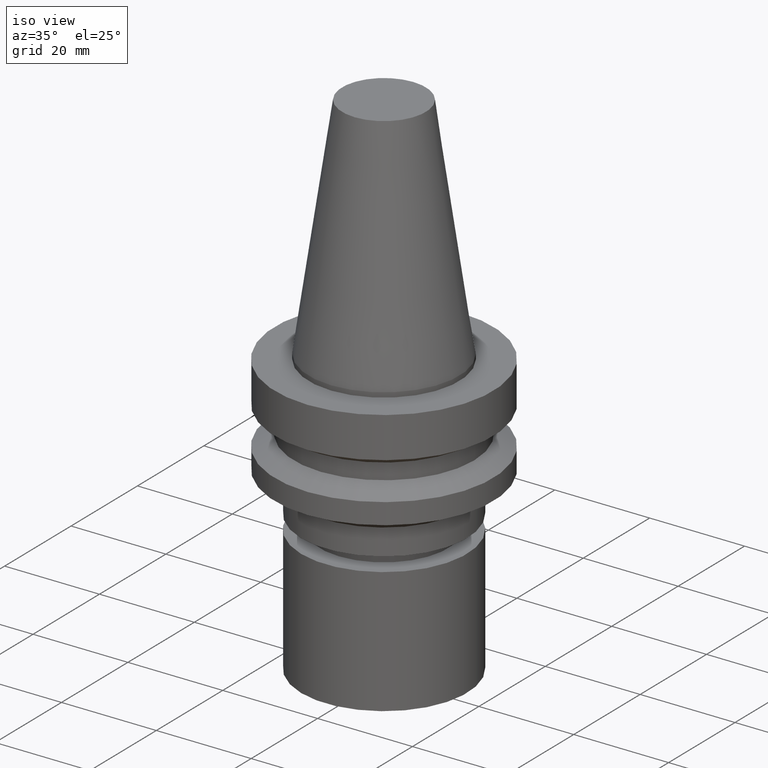
[diagram: clean part render]
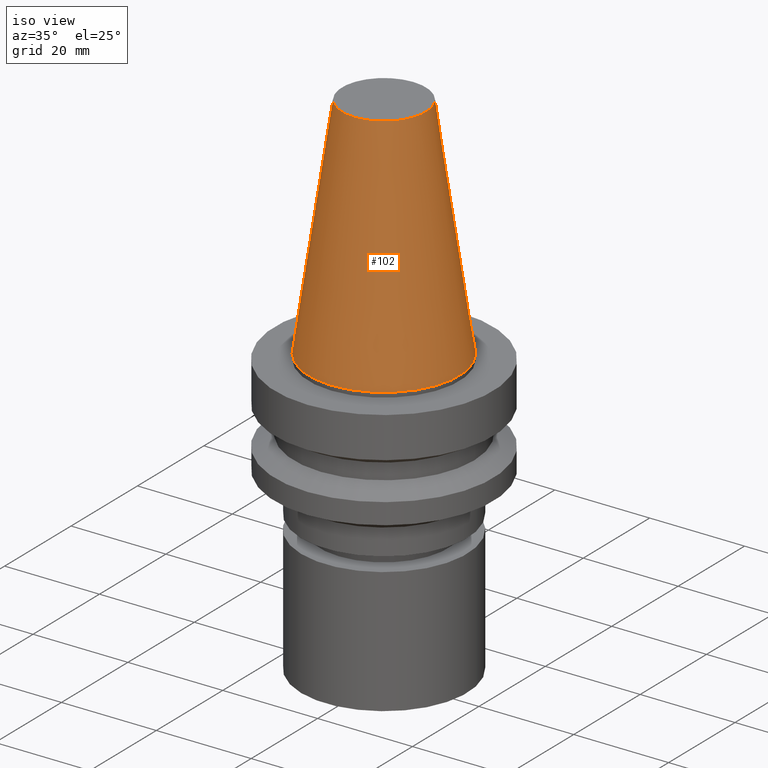
[diagram: tour spotlight — one face highlighted and labeled with its STEP entity id]
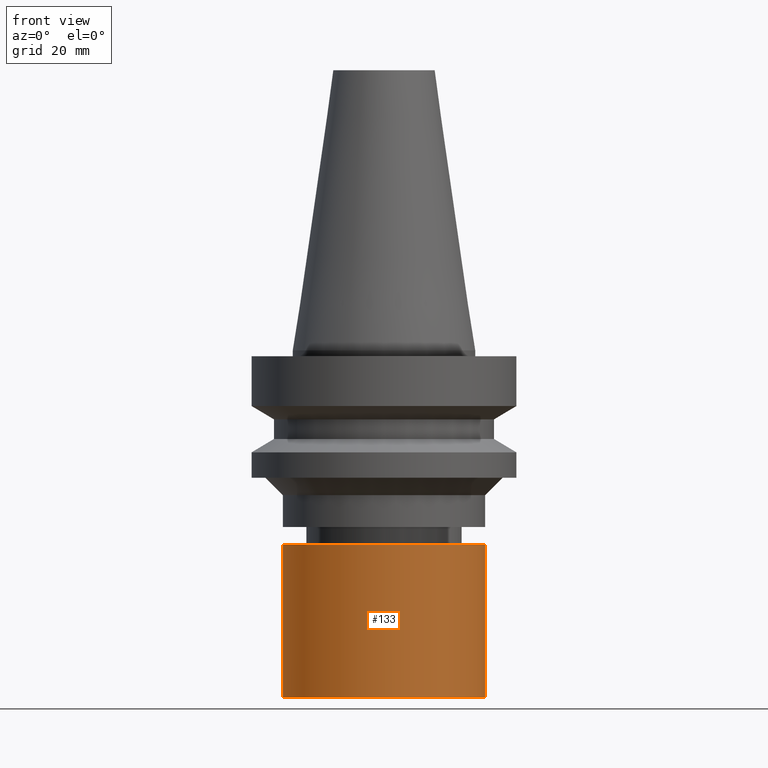
[diagram: tour spotlight — one face highlighted and labeled with its STEP entity id]
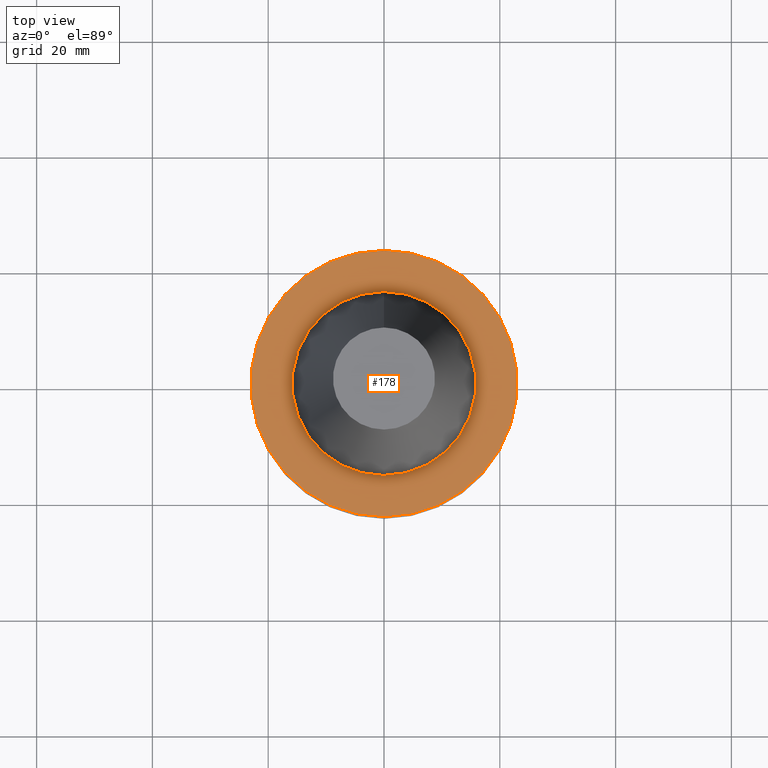
[diagram: tour spotlight — one face highlighted and labeled with its STEP entity id]
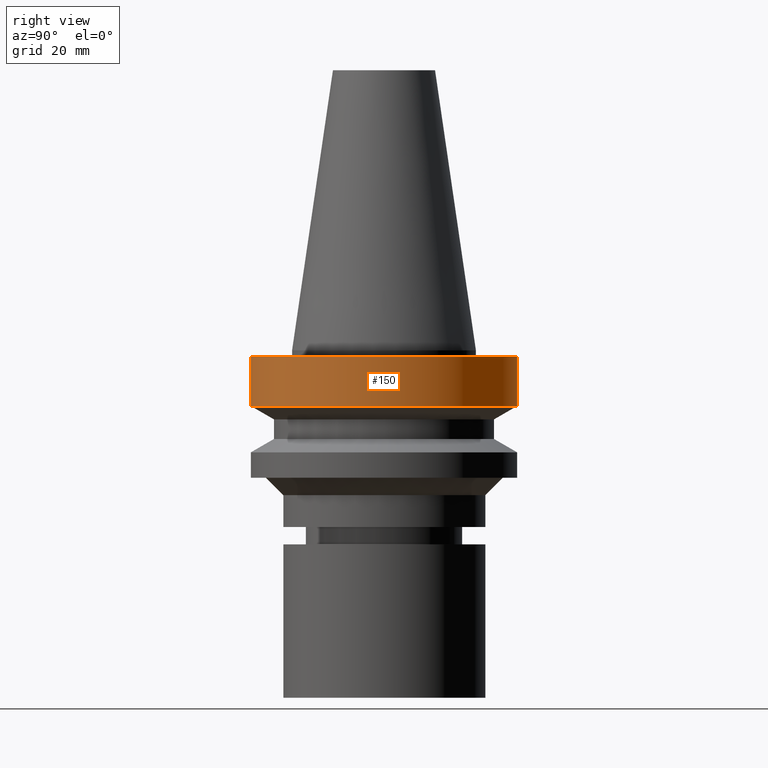
[diagram: tour spotlight — one face highlighted and labeled with its STEP entity id]
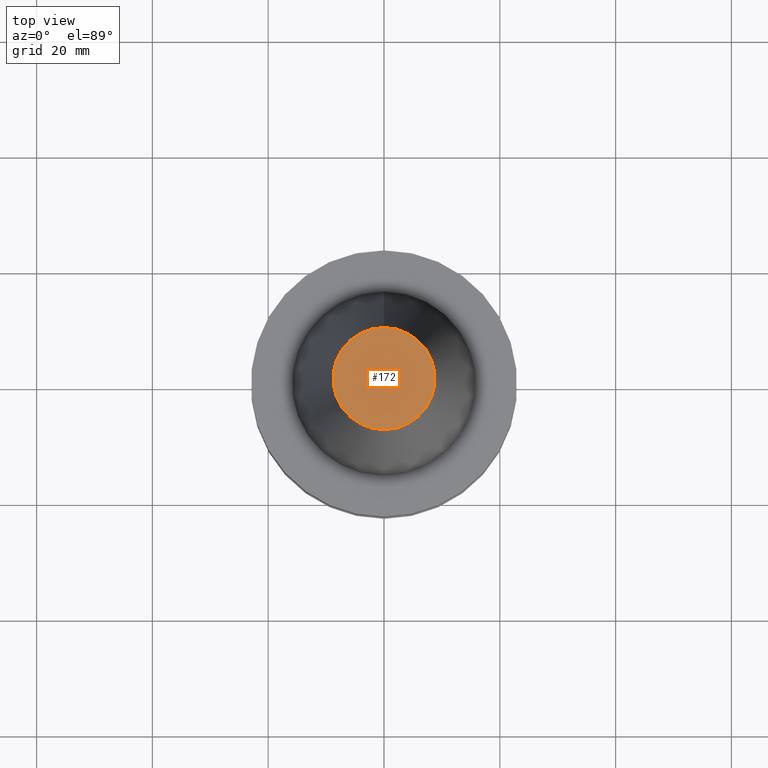
[diagram: tour spotlight — one face highlighted and labeled with its STEP entity id]
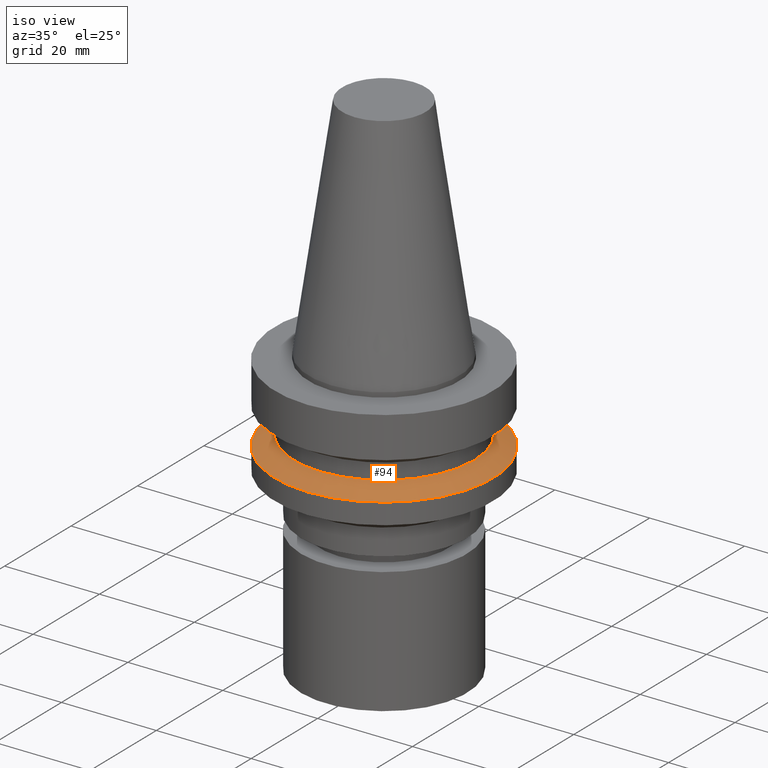
[diagram: tour spotlight — one face highlighted and labeled with its STEP entity id]
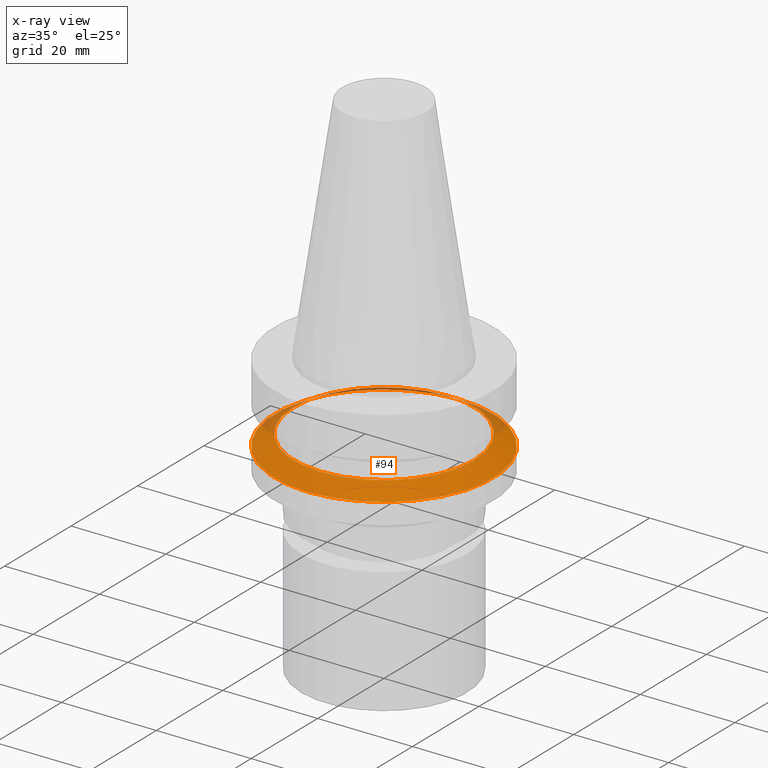
[diagram: x-ray of the same camera — body ghosted, this tour face saturated]
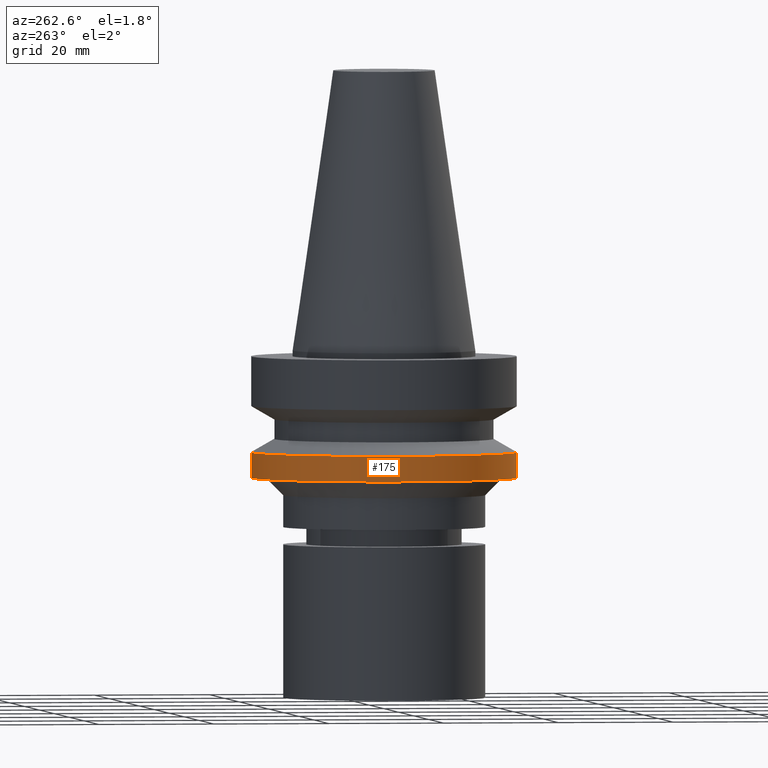
[diagram: tour spotlight — one face highlighted and labeled with its STEP entity id]
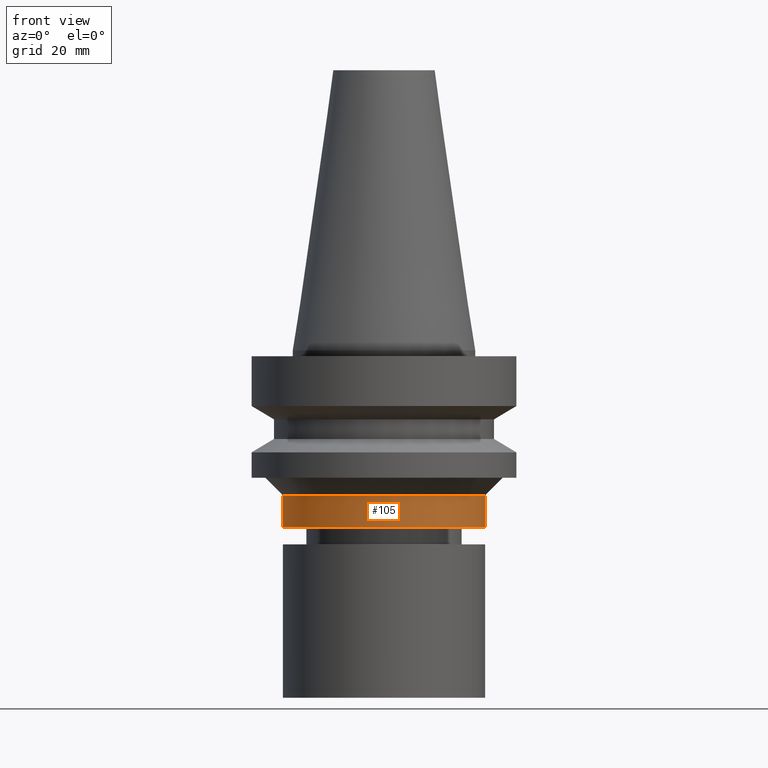
[diagram: tour spotlight — one face highlighted and labeled with its STEP entity id]
A machine part: a face-by-face anatomy tour. The part has 21 B-rep faces; the first image is the clean iso view, then the 8 largest visible faces are spotlighted one at a time (largest first), each with its STEP entity span.

Face 1 — iso view, entity #102. In plain terms, the highlighted conical surface has half-angle 8.297 deg.
Definition (entity closure, byte-faithful):
#102=ADVANCED_FACE('Unnamed[1]',(#241,#242),#243,.T.);
#116=EDGE_CURVE('Unnamed[1]',#264,#264,#265,.T.);
#180=EDGE_CURVE('Unnamed[1]',#362,#362,#363,.T.);
#241=FACE_BOUND('',#426,.T.);
#242=FACE_BOUND('',#427,.T.);
#243=CONICAL_SURFACE('',#428,12.3457500009933,0.144815870013618);
#264=VERTEX_POINT('',#455);
#265=CIRCLE('',#456,8.81650000198669);
#362=VERTEX_POINT('',#577);
#363=CIRCLE('',#578,15.875);
#426=EDGE_LOOP('',(#623));
#427=EDGE_LOOP('',(#624));
#428=AXIS2_PLACEMENT_3D('',#625,#626,#627);
#455=CARTESIAN_POINT('',(-2.96364525393659E-015,8.81650000198669,48.4));
#456=AXIS2_PLACEMENT_3D('',#649,#650,#651);
#577=CARTESIAN_POINT('',(-1.95674482349743E-031,15.875,1.94412679364642E-015));
#578=AXIS2_PLACEMENT_3D('',#758,#759,#760);
#623=ORIENTED_EDGE('',*,*,#180,.F.);
#624=ORIENTED_EDGE('',*,*,#116,.T.);
#625=CARTESIAN_POINT('',(-1.4818226269683E-015,-2.96364525393659E-015,24.2));
#626=DIRECTION('',(6.12323399573677E-017,1.22464679914735E-016,-1.0));
#627=DIRECTION('',(-1.23259516440783E-032,1.0,1.22464679914735E-016));
#649=CARTESIAN_POINT('',(-2.96364525393659E-015,-5.92729050787319E-015,48.4));
#650=DIRECTION('',(6.12323399573677E-017,1.22464679914735E-016,-1.0));
#651=DIRECTION('',(-1.23259516440783E-032,1.0,1.22464679914735E-016));
#758=CARTESIAN_POINT('',(0.0,0.0,0.0));
#759=DIRECTION('',(6.12323399573677E-017,1.22464679914735E-016,-1.0));
#760=DIRECTION('',(-1.23259516440783E-032,1.0,1.22464679914735E-016));

Face 2 — front view, entity #133. In plain terms, the highlighted cylindrical surface (bore or boss wall) has radius 17.5 mm, axis along (0, 0, -1).
Definition (entity closure, byte-faithful):
#112=EDGE_CURVE('Unnamed[1]',#258,#258,#259,.T.);
#114=EDGE_CURVE('Unnamed[1]',#261,#261,#262,.T.);
#133=ADVANCED_FACE('Unnamed[1]',(#290,#291),#292,.T.);
#258=VERTEX_POINT('',#447);
#259=CIRCLE('',#448,17.5);
#261=VERTEX_POINT('',#451);
#262=CIRCLE('',#452,17.5);
#290=FACE_BOUND('',#488,.T.);
#291=FACE_BOUND('',#489,.T.);
#292=CYLINDRICAL_SURFACE('',#490,17.5);
#447=CARTESIAN_POINT('',(3.67394039744206E-015,17.5,-60.0));
#448=AXIS2_PLACEMENT_3D('',#643,#644,#645);
#451=CARTESIAN_POINT('',(2.05128432290318E-015,17.5,-33.5000152587891));
#452=AXIS2_PLACEMENT_3D('',#646,#647,#648);
#488=EDGE_LOOP('',(#677));
#489=EDGE_LOOP('',(#678));
#490=AXIS2_PLACEMENT_3D('',#679,#680,#681);
#643=CARTESIAN_POINT('',(3.67394039744206E-015,7.34788079488411E-015,-60.0));
#644=DIRECTION('',(6.12323399573677E-017,1.22464679914735E-016,-1.0));
#645=DIRECTION('',(-1.23259516440783E-032,1.0,1.22464679914735E-016));
#646=CARTESIAN_POINT('',(2.05128432290318E-015,4.10256864580635E-015,-33.5000152587891));
#647=DIRECTION('',(6.12323399573677E-017,1.22464679914735E-016,-1.0));
#648=DIRECTION('',(-1.23259516440783E-032,1.0,1.22464679914735E-016));
#677=ORIENTED_EDGE('',*,*,#112,.F.);
#678=ORIENTED_EDGE('',*,*,#114,.T.);
#679=CARTESIAN_POINT('',(2.86261236017262E-015,5.72522472034523E-015,-46.7500076293945));
#680=DIRECTION('',(6.12323399573677E-017,1.22464679914735E-016,-1.0));
#681=DIRECTION('',(-1.23259516440783E-032,1.0,1.22464679914735E-016));

Face 3 — top view, entity #178. In plain terms, the highlighted planar face has unit normal (-0, -0, 1).
Definition (entity closure, byte-faithful):
#125=EDGE_CURVE('Unnamed[1]',#278,#278,#279,.T.);
#152=EDGE_CURVE('Unnamed[1]',#319,#319,#320,.T.);
#178=ADVANCED_FACE('Unnamed[1]',(#358,#359),#360,.T.);
#278=VERTEX_POINT('',#473);
#279=CIRCLE('',#474,23.0);
#319=VERTEX_POINT('',#523);
#320=CIRCLE('',#524,15.875);
#358=FACE_OUTER_BOUND('',#572,.T.);
#359=FACE_BOUND('',#573,.T.);
#360=PLANE('',#574);
#473=CARTESIAN_POINT('',(6.12323399573674E-017,23.0,-0.999999999999997));
#474=AXIS2_PLACEMENT_3D('',#664,#665,#666);
#523=CARTESIAN_POINT('',(6.12323399573675E-017,15.875,-0.999999999999998));
#524=AXIS2_PLACEMENT_3D('',#709,#710,#711);
#572=EDGE_LOOP('',(#753));
#573=EDGE_LOOP('',(#754));
#574=AXIS2_PLACEMENT_3D('',#755,#756,#757);
#664=CARTESIAN_POINT('',(6.12323399573677E-017,1.22464679914735E-016,-1.0));
#665=DIRECTION('',(6.12323399573677E-017,1.22464679914735E-016,-1.0));
#666=DIRECTION('',(-1.23259516440783E-032,1.0,1.22464679914735E-016));
#709=CARTESIAN_POINT('',(6.12323399573677E-017,1.22464679914735E-016,-1.0));
#710=DIRECTION('',(6.12323399573677E-017,1.22464679914735E-016,-1.0));
#711=DIRECTION('',(-1.23259516440783E-032,1.0,1.22464679914735E-016));
#753=ORIENTED_EDGE('',*,*,#125,.F.);
#754=ORIENTED_EDGE('',*,*,#152,.T.);
#755=CARTESIAN_POINT('',(6.12323399573674E-017,19.4375,-0.999999999999998));
#756=DIRECTION('',(-6.12323399573677E-017,-1.22464679914735E-016,1.0));
#757=DIRECTION('',(1.23259516440783E-032,-1.0,-1.22464679914735E-016));

Face 4 — right view, entity #150. In plain terms, the highlighted cylindrical surface (bore or boss wall) has radius 23 mm, axis along (0, 0, -1).
Definition (entity closure, byte-faithful):
#125=EDGE_CURVE('Unnamed[1]',#278,#278,#279,.T.);
#150=ADVANCED_FACE('Unnamed[1]',(#315,#316),#317,.T.);
#158=EDGE_CURVE('Unnamed[1]',#328,#328,#329,.T.);
#278=VERTEX_POINT('',#473);
#279=CIRCLE('',#474,23.0);
#315=FACE_BOUND('',#518,.T.);
#316=FACE_BOUND('',#519,.T.);
#317=CYLINDRICAL_SURFACE('',#520,23.0);
#328=VERTEX_POINT('',#535);
#329=CIRCLE('',#536,23.0);
#473=CARTESIAN_POINT('',(6.12323399573674E-017,23.0,-0.999999999999997));
#474=AXIS2_PLACEMENT_3D('',#664,#665,#666);
#518=EDGE_LOOP('',(#704));
#519=EDGE_LOOP('',(#705));
#520=AXIS2_PLACEMENT_3D('',#706,#707,#708);
#535=CARTESIAN_POINT('',(5.87830463590729E-016,23.0,-9.59999999999999));
#536=AXIS2_PLACEMENT_3D('',#718,#719,#720);
#664=CARTESIAN_POINT('',(6.12323399573677E-017,1.22464679914735E-016,-1.0));
#665=DIRECTION('',(6.12323399573677E-017,1.22464679914735E-016,-1.0));
#666=DIRECTION('',(-1.23259516440783E-032,1.0,1.22464679914735E-016));
#704=ORIENTED_EDGE('',*,*,#158,.F.);
#705=ORIENTED_EDGE('',*,*,#125,.T.);
#706=CARTESIAN_POINT('',(3.24531401774048E-016,6.49062803548097E-016,-5.3));
#707=DIRECTION('',(6.12323399573677E-017,1.22464679914735E-016,-1.0));
#708=DIRECTION('',(-1.23259516440783E-032,1.0,1.22464679914735E-016));
#718=CARTESIAN_POINT('',(5.87830463590729E-016,1.17566092718146E-015,-9.59999999999999));
#719=DIRECTION('',(6.12323399573677E-017,1.22464679914735E-016,-1.0));
#720=DIRECTION('',(-1.23259516440783E-032,1.0,1.22464679914735E-016));

Face 5 — top view, entity #172. In plain terms, the highlighted planar face has unit normal (-0, -0, 1).
Definition (entity closure, byte-faithful):
#116=EDGE_CURVE('Unnamed[1]',#264,#264,#265,.T.);
#172=ADVANCED_FACE('Unnamed[1]',(#349),#350,.T.);
#264=VERTEX_POINT('',#455);
#265=CIRCLE('',#456,8.81650000198669);
#349=FACE_OUTER_BOUND('',#561,.T.);
#350=PLANE('',#562);
#455=CARTESIAN_POINT('',(-2.96364525393659E-015,8.81650000198669,48.4));
#456=AXIS2_PLACEMENT_3D('',#649,#650,#651);
#561=EDGE_LOOP('',(#742));
#562=AXIS2_PLACEMENT_3D('',#743,#744,#745);
#649=CARTESIAN_POINT('',(-2.96364525393659E-015,-5.92729050787319E-015,48.4));
#650=DIRECTION('',(6.12323399573677E-017,1.22464679914735E-016,-1.0));
#651=DIRECTION('',(-1.23259516440783E-032,1.0,1.22464679914735E-016));
#742=ORIENTED_EDGE('',*,*,#116,.F.);
#743=CARTESIAN_POINT('',(-2.96364525393659E-015,4.40825000099334,48.4));
#744=DIRECTION('',(-6.12323399573677E-017,-1.22464679914735E-016,1.0));
#745=DIRECTION('',(1.23259516440783E-032,-1.0,-1.22464679914735E-016));

Face 6 — iso view, entity #94. An x-ray twin of the same camera follows (body ghosted, this face saturated) — the face is partly hidden behind the body. In plain terms, the highlighted conical surface has half-angle 60 deg.
Definition (entity closure, byte-faithful):
#80=EDGE_CURVE('Unnamed[1]',#209,#209,#210,.T.);
#94=ADVANCED_FACE('Unnamed[1]',(#229,#230),#231,.T.);
#130=EDGE_CURVE('Unnamed[1]',#286,#286,#287,.T.);
#209=VERTEX_POINT('',#387);
#210=CIRCLE('',#388,23.0);
#229=FACE_BOUND('',#411,.T.);
#230=FACE_BOUND('',#412,.T.);
#231=CONICAL_SURFACE('',#413,21.0,1.04719755058882);
#286=VERTEX_POINT('',#483);
#287=CIRCLE('',#484,19.0);
#387=CARTESIAN_POINT('',(1.07768918324967E-015,23.0,-17.6));
#388=AXIS2_PLACEMENT_3D('',#589,#590,#591);
#411=EDGE_LOOP('',(#609));
#412=EDGE_LOOP('',(#610));
#413=AXIS2_PLACEMENT_3D('',#611,#612,#613);
#483=CARTESIAN_POINT('',(9.36279151221199E-016,19.0,-15.29059892));
#484=AXIS2_PLACEMENT_3D('',#673,#674,#675);
#589=CARTESIAN_POINT('',(1.07768918324967E-015,2.15537836649934E-015,-17.6));
#590=DIRECTION('',(6.12323399573677E-017,1.22464679914735E-016,-1.0));
#591=DIRECTION('',(-1.23259516440783E-032,1.0,1.22464679914735E-016));
#609=ORIENTED_EDGE('',*,*,#80,.F.);
#610=ORIENTED_EDGE('',*,*,#130,.T.);
#611=CARTESIAN_POINT('',(1.00698416723543E-015,2.01396833447087E-015,-16.44529946));
#612=DIRECTION('',(6.12323399573677E-017,1.22464679914735E-016,-1.0));
#613=DIRECTION('',(-1.23259516440783E-032,1.0,1.22464679914735E-016));
#673=CARTESIAN_POINT('',(9.36279151221199E-016,1.8725583024424E-015,-15.29059892));
#674=DIRECTION('',(6.12323399573677E-017,1.22464679914735E-016,-1.0));
#675=DIRECTION('',(-1.23259516440783E-032,1.0,1.22464679914735E-016));

Face 7 — auxiliary view, entity #175. In plain terms, the highlighted cylindrical surface (bore or boss wall) has radius 23 mm, axis along (0, 0, -1).
Definition (entity closure, byte-faithful):
#80=EDGE_CURVE('Unnamed[1]',#209,#209,#210,.T.);
#91=EDGE_CURVE('Unnamed[1]',#225,#225,#226,.T.);
#175=ADVANCED_FACE('Unnamed[1]',(#353,#354),#355,.T.);
#209=VERTEX_POINT('',#387);
#210=CIRCLE('',#388,23.0);
#225=VERTEX_POINT('',#406);
#226=CIRCLE('',#407,23.0);
#353=FACE_BOUND('',#566,.T.);
#354=FACE_BOUND('',#567,.T.);
#355=CYLINDRICAL_SURFACE('',#568,23.0);
#387=CARTESIAN_POINT('',(1.07768918324967E-015,23.0,-17.6));
#388=AXIS2_PLACEMENT_3D('',#589,#590,#591);
#406=CARTESIAN_POINT('',(1.34711147906209E-015,23.0,-22.0));
#407=AXIS2_PLACEMENT_3D('',#605,#606,#607);
#566=EDGE_LOOP('',(#747));
#567=EDGE_LOOP('',(#748));
#568=AXIS2_PLACEMENT_3D('',#749,#750,#751);
#589=CARTESIAN_POINT('',(1.07768918324967E-015,2.15537836649934E-015,-17.6));
#590=DIRECTION('',(6.12323399573677E-017,1.22464679914735E-016,-1.0));
#591=DIRECTION('',(-1.23259516440783E-032,1.0,1.22464679914735E-016));
#605=CARTESIAN_POINT('',(1.34711147906209E-015,2.69422295812418E-015,-22.0));
#606=DIRECTION('',(6.12323399573677E-017,1.22464679914735E-016,-1.0));
#607=DIRECTION('',(-1.23259516440783E-032,1.0,1.22464679914735E-016));
#747=ORIENTED_EDGE('',*,*,#91,.F.);
#748=ORIENTED_EDGE('',*,*,#80,.T.);
#749=CARTESIAN_POINT('',(1.21240033115588E-015,2.42480066231176E-015,-19.8));
#750=DIRECTION('',(6.12323399573677E-017,1.22464679914735E-016,-1.0));
#751=DIRECTION('',(-1.23259516440783E-032,1.0,1.22464679914735E-016));

Face 8 — front view, entity #105. In plain terms, the highlighted cylindrical surface (bore or boss wall) has radius 17.5 mm, axis along (0, 0, -1).
Definition (entity closure, byte-faithful):
#105=ADVANCED_FACE('Unnamed[1]',(#246,#247),#248,.T.);
#120=EDGE_CURVE('Unnamed[1]',#270,#270,#271,.T.);
#163=EDGE_CURVE('Unnamed[1]',#335,#335,#336,.T.);
#246=FACE_BOUND('',#432,.T.);
#247=FACE_BOUND('',#433,.T.);
#248=CYLINDRICAL_SURFACE('',#434,17.4999999999997);
#270=VERTEX_POINT('',#463);
#271=CIRCLE('',#464,17.4999999999995);
#335=VERTEX_POINT('',#544);
#336=CIRCLE('',#545,17.4999999999999);
#432=EDGE_LOOP('',(#629));
#433=EDGE_LOOP('',(#630));
#434=AXIS2_PLACEMENT_3D('',#631,#632,#633);
#463=CARTESIAN_POINT('',(1.53080849893421E-015,17.4999999999995,-25.0000000000002));
#464=AXIS2_PLACEMENT_3D('',#655,#656,#657);
#544=CARTESIAN_POINT('',(1.8675863686997E-015,17.4999999999999,-30.4999999999998));
#545=AXIS2_PLACEMENT_3D('',#726,#727,#728);
#629=ORIENTED_EDGE('',*,*,#163,.F.);
#630=ORIENTED_EDGE('',*,*,#120,.T.);
#631=CARTESIAN_POINT('',(1.69919743381695E-015,3.39839486763391E-015,-27.75));
#632=DIRECTION('',(6.12323399573677E-017,1.22464679914735E-016,-1.0));
#633=DIRECTION('',(-1.23259516440783E-032,1.0,1.22464679914735E-016));
#655=CARTESIAN_POINT('',(1.53080849893421E-015,3.06161699786841E-015,-25.0000000000002));
#656=DIRECTION('',(6.12323399573677E-017,1.22464679914735E-016,-1.0));
#657=DIRECTION('',(-1.23259516440783E-032,1.0,1.22464679914735E-016));
#726=CARTESIAN_POINT('',(1.8675863686997E-015,3.7351727373994E-015,-30.4999999999998));
#727=DIRECTION('',(6.12323399573677E-017,1.22464679914735E-016,-1.0));
#728=DIRECTION('',(-1.23259516440783E-032,1.0,1.22464679914735E-016));